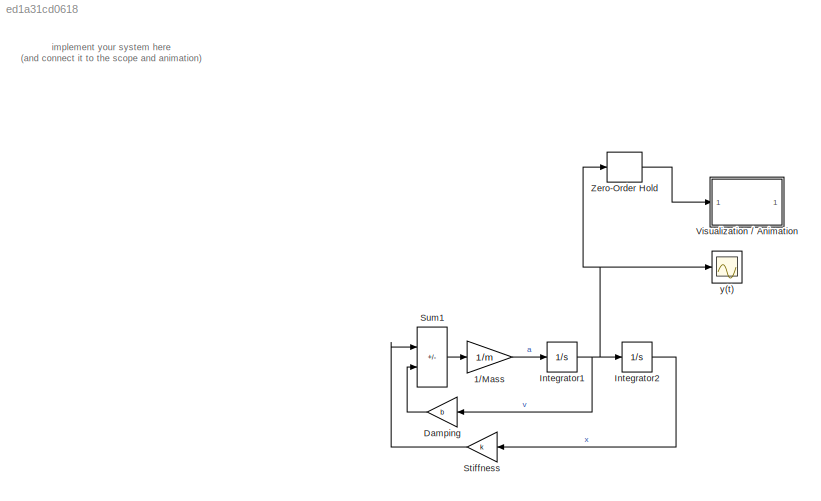
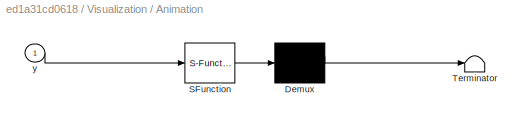
MODEL slx_ed1a31cd0618
KIND model
CONFIG AbsTol = 1e-6
CONFIG EnableMultiTasking = off
CONFIG FixedStep = 1e-2
CONFIG MaxStep = auto
CONFIG MinStep = auto
CONFIG RelTol = 1e-3
CONFIG SampleTimeConstraint = Unconstrained
CONFIG SolverName = ode4
CONFIG StartTime = 0.0
CONFIG StopTime = 10
BLOCK [Gain] 1//Mass 
  Gain = 1/m
  OutDataTypeStr = Inherit: Same as input
  ParamDataTypeStr = Inherit: Same as input
  SaturateOnIntegerOverflow = on
BLOCK [Gain] Damping
  Gain = b
  OutDataTypeStr = Inherit: Same as input
  ParamDataTypeStr = Inherit: Same as input
  SaturateOnIntegerOverflow = on
BLOCK [Integrator] Integrator1
BLOCK [Integrator] Integrator2
  AttributesFormatString = x0 = %<InitialCondition> m
  InitialCondition = 10
BLOCK [Gain] Stiffness
  Gain = k
  OutDataTypeStr = Inherit: Same as input
  ParamDataTypeStr = Inherit: Same as input
  SaturateOnIntegerOverflow = on
BLOCK [Sum] Sum1
  IconShape = rectangular
  InputSameDT = on
  Inputs = --
  OutDataTypeStr = Inherit: Same as first input
  SaturateOnIntegerOverflow = on
BLOCK [SubSystem] Visualization // Animation
  ErrorFcn = Stateflow.Translate.translate
  PermitHierarchicalResolution = ExplicitOnly
  SFBlockType = MATLAB Function
  TreatAsAtomicUnit = on
BLOCK [Demux] Visualization // Animation/ Demux 
  Outputs = 1
BLOCK [S-Function] Visualization // Animation/ SFunction 
  EnableBusSupport = on
  FunctionName = sf_sfun
  PortCounts = [1 1]
  SFcnIsStateOwnerBlock = off
  SFunctionDeploymentMode = off
  Tag = Stateflow S-Function 2
BLOCK [Terminator] Visualization // Animation/ Terminator 
BLOCK [Inport] Visualization // Animation/y
BLOCK [ZeroOrderHold] Zero-Order Hold
  SampleTime = 0.1
BLOCK [Scope] y(t)
  Floating = off
  NumInputPorts = 1
  ScopeSpecificationString = Simulink.scopes.TimeScopeBlockCfg('CurrentConfiguration', extmgr.ConfigurationSet(extmgr.Configuration('Core','General UI',true),extmgr.Configuration('Core','Source UI',true),extmgr.Configuration('Sources','WiredSimulink',true),extmgr.Configuration('Visuals','Time Domain',true,'SerializedDisplays',{struct('MinYLimReal','-7.28861','MaxYLimReal','1.11944','YLabelReal','','MinYLimMag','0.00000','MaxY...<+1351ch>
ANNOTATION (root): implement your system here (and connect it to the scope and animation)
LINE 1//Mass :1 -> Integrator1:1
LINE Damping:1 -> Sum1:2
NET Integrator1:1 -> Damping:1, Integrator2:1, Zero-Order Hold:1, y(t):1
LINE Integrator2:1 -> Stiffness:1
LINE Stiffness:1 -> Sum1:1
LINE Sum1:1 -> 1//Mass :1
LINE Zero-Order Hold:1 -> Visualization // Animation:1
note: NET lines group one-source signal fan-out (src -> all destinations, sorted); 1:1 wires keep LINE
CHART Visualization // Animation states=1 transitions=1
  STATE_LABEL 'eML_blk_kernel()'
  STATE_LABEL "SCRIPT:\nfunction fcn(y)\n\n\n% the mass\n    Xmass = [ 5 ; 5 ; -5 ; -5 ; 5 ] + y;\n    Ymass = [ -5 ; 5 ; 5 ; -5 ; -5]; \n\n% the spring\n    Xspring = [ 0 ; 4 ; 6 ; 10 ; 14 ; 18 ; 20 ; 24 ]/24*(y+24) - 29;\n    Yspring = [ 0 ; 0 ; 3 ; -3 ; 3 ; -3 ; 0 ; 0 ];\n\n% to be able to use 'fill' even though the function is not supported for code generation\n% see https://se.mathworks.com/help/simulink/slref/coder.ext...<+446ch>"
CHART  states=0 transitions=0
